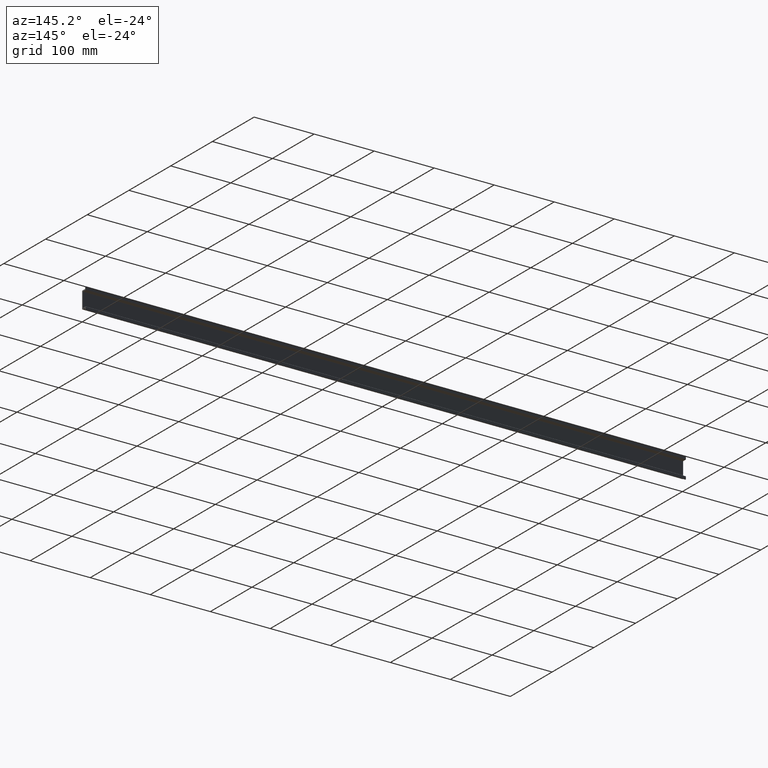
[diagram: clean part render]
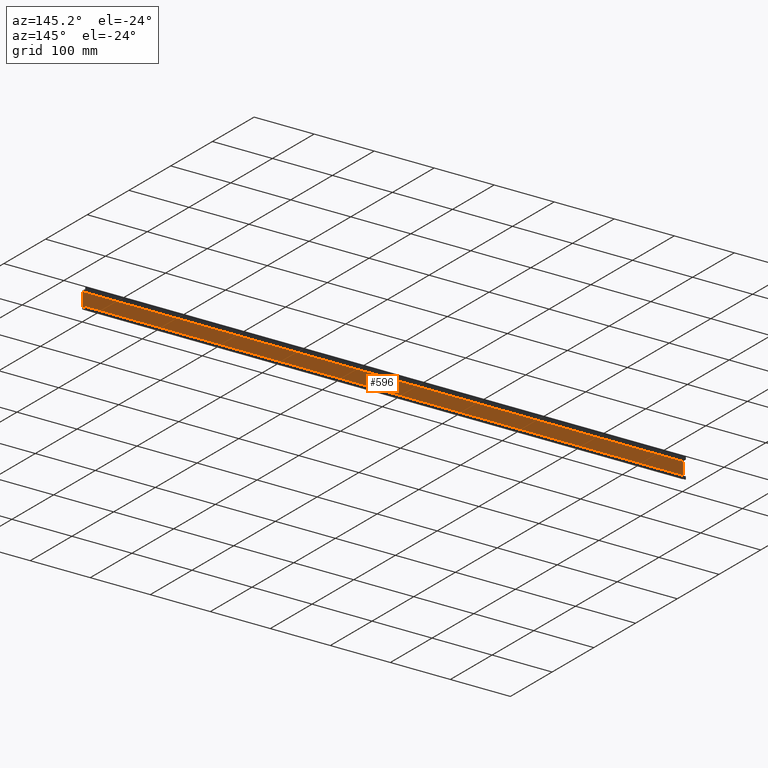
[diagram: same view with one face highlighted and labeled with its STEP entity id]
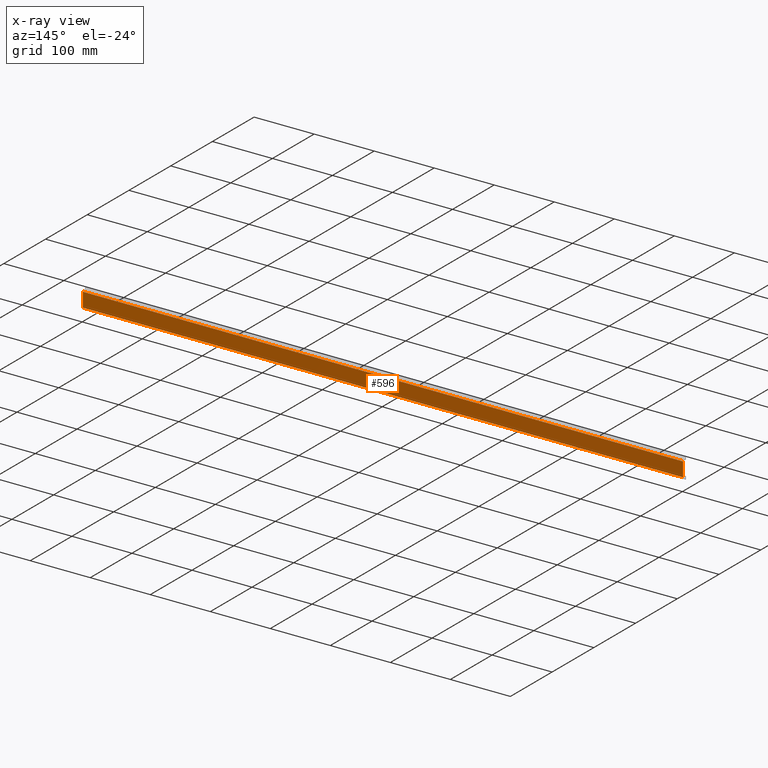
[diagram: x-ray of the same camera — body ghosted, the highlighted face saturated]
A machine part, auxiliary view. The second image highlights one B-rep face of the part: STEP entity #596.
The next image is the same camera in x-ray: the body ghosted, the highlighted face saturated — about 0% of this face is hidden behind the body in this view.
In plain terms, the highlighted planar face has unit normal (0, -1, 0).
Its self-contained STEP definition (entity closure, byte-faithful):
#59 = EDGE_LOOP ( 'NONE', ( #212, #189, #165, #152 ) ) ;
#119 = VERTEX_POINT ( 'NONE', #216 ) ;
#136 = VERTEX_POINT ( 'NONE', #214 ) ;
#142 = VERTEX_POINT ( 'NONE', #246 ) ;
#147 = VERTEX_POINT ( 'NONE', #231 ) ;
#152 = ORIENTED_EDGE ( 'NONE', *, *, #577, .T. ) ;
#165 = ORIENTED_EDGE ( 'NONE', *, *, #641, .F. ) ;
#189 = ORIENTED_EDGE ( 'NONE', *, *, #648, .F. ) ;
#212 = ORIENTED_EDGE ( 'NONE', *, *, #647, .T. ) ;
#214 = CARTESIAN_POINT ( 'NONE',  ( 0.0000000000000000000, 1.899999999999901800, 25.09999999999967800 ) ) ;
#216 = CARTESIAN_POINT ( 'NONE',  ( 1000.000000000000000, 1.899999999999901800, 25.09999999999967800 ) ) ;
#231 = CARTESIAN_POINT ( 'NONE',  ( 1000.000000000000000, 1.899999999999901800, 1.199999999999867800 ) ) ;
#246 = CARTESIAN_POINT ( 'NONE',  ( 0.0000000000000000000, 1.899999999999901800, 1.199999999999867800 ) ) ;
#292 = LINE ( 'NONE', #302, #691 ) ;
#302 = CARTESIAN_POINT ( 'NONE',  ( 1000.000000000000000, 1.899999999999901800, 1.199999999999867800 ) ) ;
#313 = DIRECTION ( 'NONE',  ( -1.000000000000000000, -0.0000000000000000000, -0.0000000000000000000 ) ) ;
#339 = FACE_OUTER_BOUND ( 'NONE', #59, .T. ) ;
#372 = DIRECTION ( 'NONE',  ( 0.0000000000000000000, -1.000000000000000000, 0.0000000000000000000 ) ) ;
#396 = CARTESIAN_POINT ( 'NONE',  ( 1000.000000000000000, 1.899999999999901800, 25.09999999999967800 ) ) ;
#411 = DIRECTION ( 'NONE',  ( 0.0000000000000000000, -0.0000000000000000000, -1.000000000000000000 ) ) ;
#418 = PLANE ( 'NONE',  #729 ) ;
#514 = CARTESIAN_POINT ( 'NONE',  ( 1000.000000000000000, 1.899999999999901800, 25.09999999999967800 ) ) ;
#518 = CARTESIAN_POINT ( 'NONE',  ( 1000.000000000000000, 1.899999999999901800, 25.09999999999967800 ) ) ;
#519 = LINE ( 'NONE', #546, #755 ) ;
#520 = DIRECTION ( 'NONE',  ( -1.000000000000000000, -0.0000000000000000000, -0.0000000000000000000 ) ) ;
#525 = DIRECTION ( 'NONE',  ( -0.0000000000000000000, -0.0000000000000000000, 1.000000000000000000 ) ) ;
#535 = LINE ( 'NONE', #518, #736 ) ;
#537 = DIRECTION ( 'NONE',  ( -0.0000000000000000000, -0.0000000000000000000, 1.000000000000000000 ) ) ;
#543 = LINE ( 'NONE', #514, #751 ) ;
#546 = CARTESIAN_POINT ( 'NONE',  ( 0.0000000000000000000, 1.899999999999901800, 25.09999999999967800 ) ) ;
#577 = EDGE_CURVE ( 'NONE', #147, #142, #292, .T. ) ;
#596 = ADVANCED_FACE ( 'NONE', ( #339 ), #418, .F. ) ;
#641 = EDGE_CURVE ( 'NONE', #147, #119, #535, .T. ) ;
#647 = EDGE_CURVE ( 'NONE', #142, #136, #519, .T. ) ;
#648 = EDGE_CURVE ( 'NONE', #119, #136, #543, .T. ) ;
#691 = VECTOR ( 'NONE', #313, 1000.000000000000000 ) ;
#729 = AXIS2_PLACEMENT_3D ( 'NONE', #396, #372, #411 ) ;
#736 = VECTOR ( 'NONE', #525, 1000.000000000000000 ) ;
#751 = VECTOR ( 'NONE', #520, 1000.000000000000000 ) ;
#755 = VECTOR ( 'NONE', #537, 1000.000000000000000 ) ;